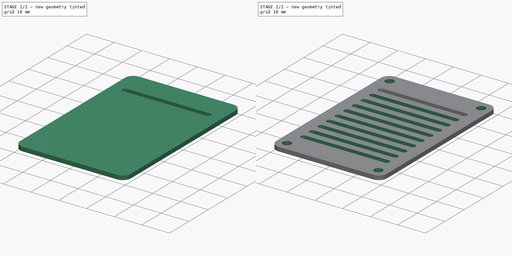
[diagram: build sequence overview — one tinted view per stage of 2, left to right]
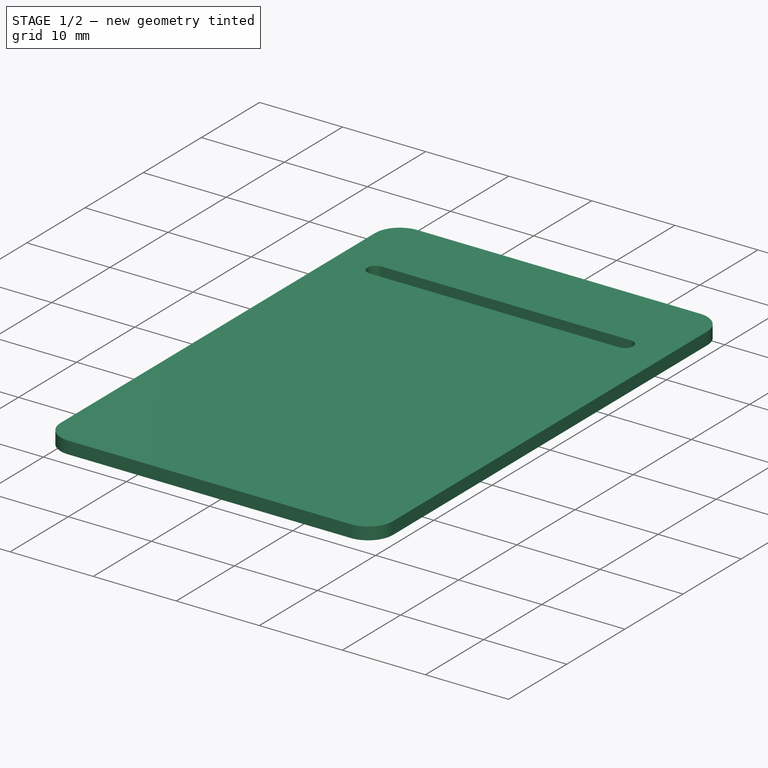
[diagram: stage 1 of 2 — iso view after this stage's code; geometry added in this stage tinted green]
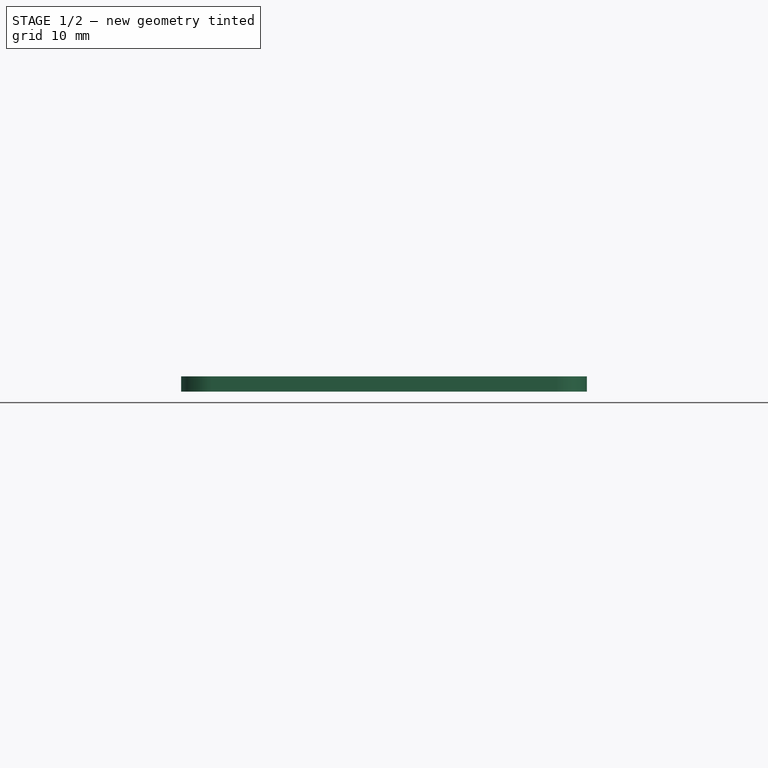
[diagram: stage 1 of 2 — front view after this stage's code; geometry added in this stage tinted green]
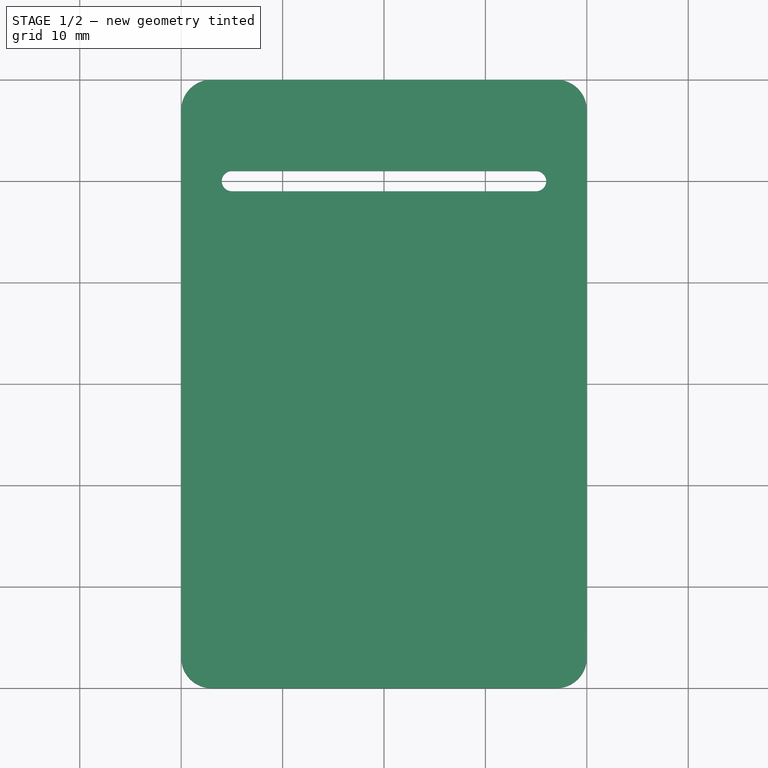
[diagram: stage 1 of 2 — top view after this stage's code; geometry added in this stage tinted green]
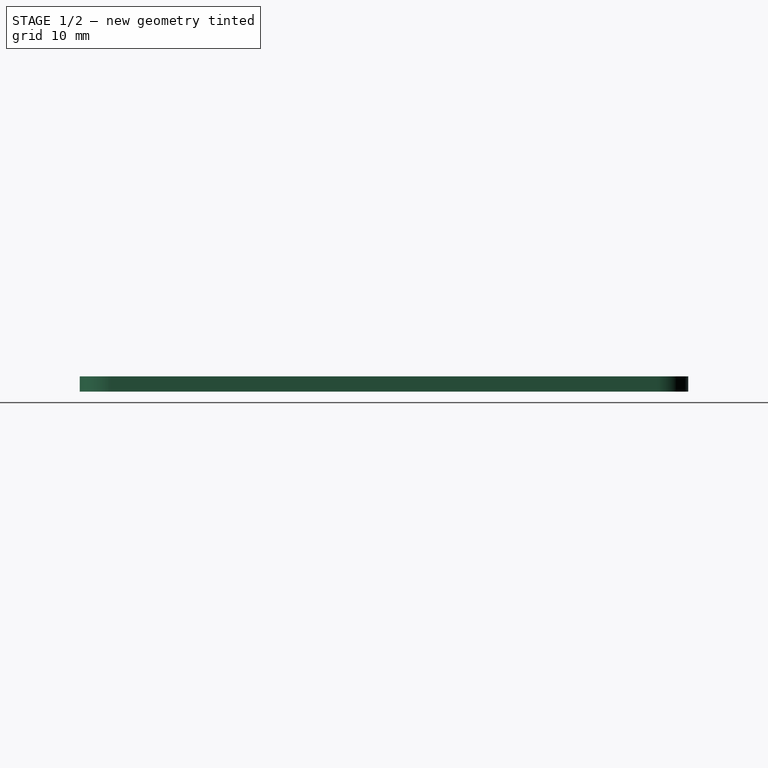
[diagram: stage 1 of 2 — right view after this stage's code; geometry added in this stage tinted green]
FCSTD DOCUMENT  (FreeCAD 0.20R29177 (Git))
Label: ESP01-lid-v1
License: All rights reserved
LicenseURL: http://en.wikipedia.org/wiki/All_rights_reserved
objects: Sketcher::SketchObject×3, PartDesign::Pocket×2, PartDesign::Pad×1, PartDesign::LinearPattern×1, PartDesign::Body×1
note: 11 computed .brp shape members not serialized (recipe doc carries the construction recipe); baked Part::Feature solids carry a one-line shape summary decoded from their .brp

FEATURE [Sketcher::SketchObject] Sketch
  FullyConstrained = true
  MapMode = 5
  Support = -> [XY_Plane]
  sketch-geometry (8):
    g0: LineSegment StartX=-17 StartY=30 StartZ=0 EndX=17 EndY=30 EndZ=0
    g1: LineSegment StartX=20 StartY=27 StartZ=0 EndX=20 EndY=-27 EndZ=0
    g2: LineSegment StartX=17 StartY=-30 StartZ=0 EndX=-17 EndY=-30 EndZ=0
    g3: LineSegment StartX=-20 StartY=-27 StartZ=0 EndX=-20 EndY=27 EndZ=0
    g4: ArcOfCircle CenterX=-17 CenterY=27 CenterZ=0 NormalX=0 NormalY=0 NormalZ=1 AngleXU=0 Radius=3 StartAngle=1.5708 EndAngle=3.14159
    g5: ArcOfCircle CenterX=-17 CenterY=-27 CenterZ=0 NormalX=0 NormalY=0 NormalZ=1 AngleXU=0 Radius=3 StartAngle=3.14159 EndAngle=4.71239
    g6: ArcOfCircle CenterX=17 CenterY=-27 CenterZ=0 NormalX=0 NormalY=0 NormalZ=1 AngleXU=0 Radius=3 StartAngle=4.71239 EndAngle=6.28319
    g7: ArcOfCircle CenterX=17 CenterY=27 CenterZ=0 NormalX=0 NormalY=0 NormalZ=1 AngleXU=0 Radius=3 StartAngle=7.1e-15 EndAngle=1.5708
  constraints (19):
    c: Horizontal(g0)
    c: Horizontal(g2)
    c: Vertical(g1)
    c: Vertical(g3)
    c: Tangent(g3,g4) = 1.5708
    c: Tangent(g0,g4) = 1.5708
    c: Tangent(g3,g5) = 1.5708
    c: Tangent(g2,g5) = 1.5708
    c: Tangent(g2,g6) = 1.5708
    c: Tangent(g1,g6) = 1.5708
    c: Tangent(g0,g7) = 1.5708
    c: Tangent(g1,g7) = 1.5708
    c: Equal(g7,g6)
    c: Equal(g6,g5)
    c: Equal(g5,g4)
    c: Radius(g4) = 3
    c: Symmetric(g4,g6,g-1)
    c: DistanceX(g3,g1) = 40
    c: DistanceY(g2,g0) = 60
FEATURE [PartDesign::Pad] Pad
  Direction = (0,0,1)
  Length = 1.5
  Length2 = 10
  Profile = -> Sketch
  ReferenceAxis = -> Sketch [N_Axis]
  Type = 0
FEATURE [Sketcher::SketchObject] Sketch001
  FullyConstrained = true
  MapMode = 5
  Placement = pos=(0,0,1.5) rot=(0,0,1;0rad)
  Support = -> [Pad]
  sketch-geometry (4):
    g0: ArcOfCircle CenterX=-15 CenterY=20 CenterZ=0 NormalX=0 NormalY=0 NormalZ=1 AngleXU=0 Radius=1 StartAngle=1.5708 EndAngle=4.71239
    g1: ArcOfCircle CenterX=15 CenterY=20 CenterZ=0 NormalX=0 NormalY=0 NormalZ=1 AngleXU=0 Radius=1 StartAngle=4.71239 EndAngle=7.85398
    g2: LineSegment StartX=-15 StartY=19 StartZ=0 EndX=15 EndY=19 EndZ=0
    g3: LineSegment StartX=15 StartY=21 StartZ=0 EndX=-15 EndY=21 EndZ=0
  constraints (9):
    c: Tangent(g0,g2) = -1.5708
    c: Tangent(g2,g1) = -1.5708
    c: Tangent(g1,g3) = -1.5708
    c: Tangent(g3,g0) = -1.5708
    c: Equal(g0,g1)
    c: Symmetric(g1,g0,g-2)
    c: DistanceY(g1,g1) = 2
    c: DistanceY(g-1,g0) = 20
    c: DistanceX(g2,g2) = 30
FEATURE [PartDesign::Pocket] Pocket
  BaseFeature = -> Pad
  Direction = (0,0,-1)
  Length = 5
  Length2 = 5
  Profile = -> Sketch001
  ReferenceAxis = -> Sketch001 [N_Axis]
  Type = 0
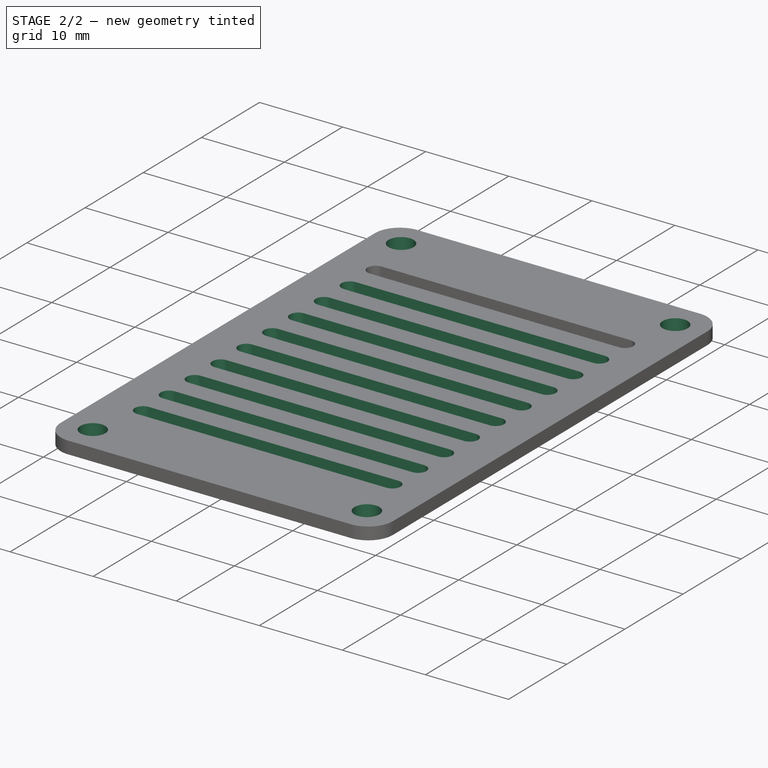
[diagram: stage 2 of 2 — iso view after this stage's code; geometry added in this stage tinted green]
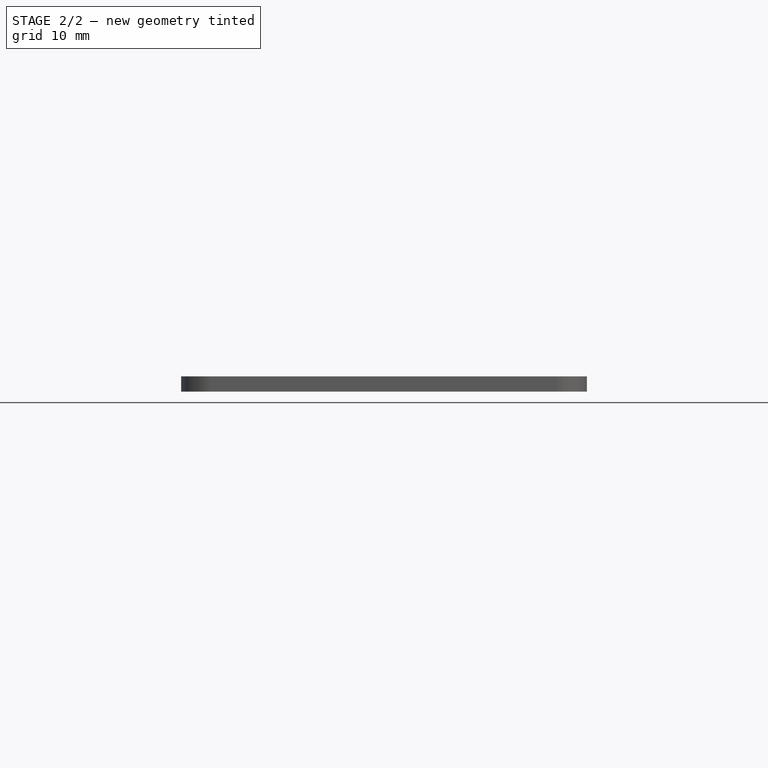
[diagram: stage 2 of 2 — front view after this stage's code; geometry added in this stage tinted green]
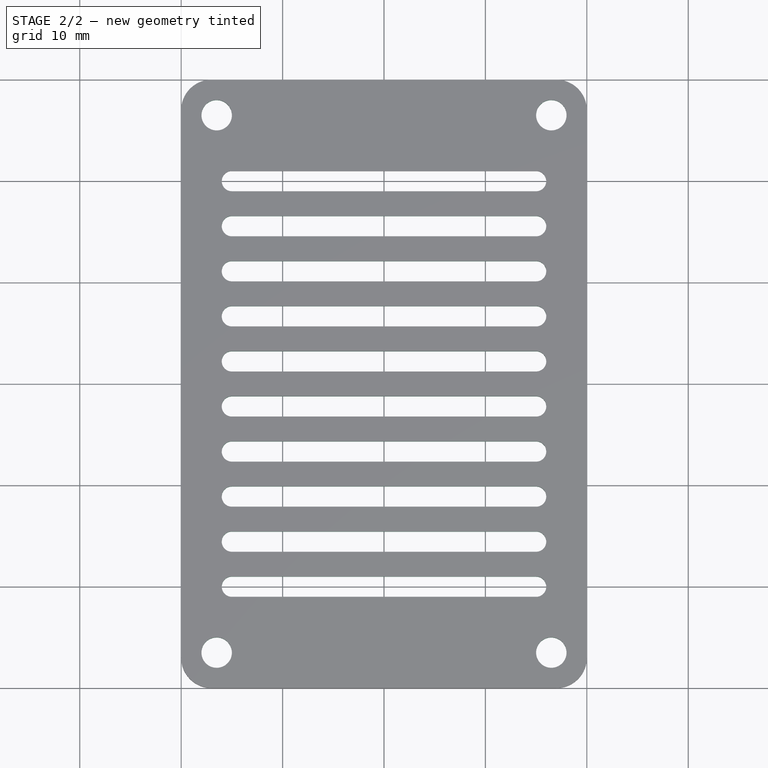
[diagram: stage 2 of 2 — top view after this stage's code; geometry added in this stage tinted green]
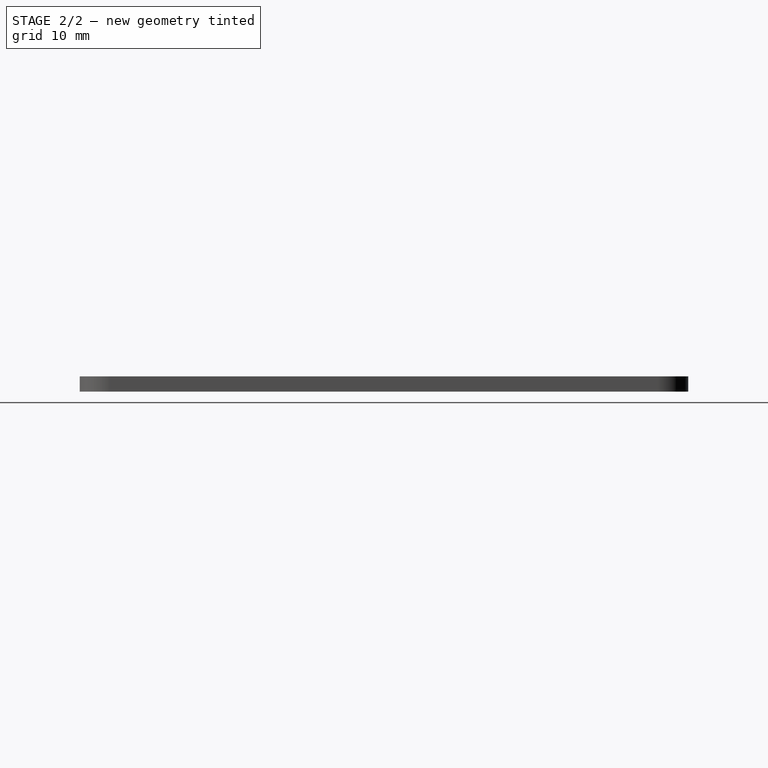
[diagram: stage 2 of 2 — right view after this stage's code; geometry added in this stage tinted green]
FEATURE [PartDesign::LinearPattern] LinearPattern
  BaseFeature = -> Pocket
  Direction = -> Sketch001 [V_Axis]
  Length = 40
  Occurrences = 10
  Originals = -> [Pocket]
  Reversed = true
FEATURE [Sketcher::SketchObject] Sketch002
  FullyConstrained = true
  MapMode = 5
  Placement = pos=(0,0,1.5) rot=(0,0,1;0rad)
  Support = -> [LinearPattern]
  sketch-geometry (28):
    g0: LineSegment StartX=-17 StartY=30 StartZ=0 EndX=-13 EndY=30 EndZ=0
    g1: LineSegment StartX=-13 StartY=30 StartZ=0 EndX=-13 EndY=26 EndZ=0
    g2: LineSegment StartX=-16 StartY=23 StartZ=0 EndX=-20 EndY=23 EndZ=0
    g3: LineSegment StartX=-20 StartY=23 StartZ=0 EndX=-20 EndY=27 EndZ=0
    g4: LineSegment StartX=17 StartY=30 StartZ=0 EndX=13 EndY=30 EndZ=0
    g5: LineSegment StartX=13 StartY=30 StartZ=0 EndX=13 EndY=26 EndZ=0
    g6: LineSegment StartX=16 StartY=23 StartZ=0 EndX=20 EndY=23 EndZ=0
    g7: LineSegment StartX=20 StartY=23 StartZ=0 EndX=20 EndY=27 EndZ=0
    g8: LineSegment StartX=-16 StartY=-23 StartZ=0 EndX=-20 EndY=-23 EndZ=0
    g9: LineSegment StartX=-20 StartY=-23 StartZ=0 EndX=-20 EndY=-27 EndZ=0
    g10: LineSegment StartX=-17 StartY=-30 StartZ=0 EndX=-13 EndY=-30 EndZ=0
    g11: LineSegment StartX=-13 StartY=-30 StartZ=0 EndX=-13 EndY=-26 EndZ=0
    g12: LineSegment StartX=16 StartY=-23 StartZ=0 EndX=20 EndY=-23 EndZ=0
    g13: LineSegment StartX=20 StartY=-23 StartZ=0 EndX=20 EndY=-27 EndZ=0
    g14: LineSegment StartX=17 StartY=-30 StartZ=0 EndX=13 EndY=-30 EndZ=0
    g15: LineSegment StartX=13 StartY=-30 StartZ=0 EndX=13 EndY=-26 EndZ=0
    g16: ArcOfCircle CenterX=-16 CenterY=26 CenterZ=0 NormalX=0 NormalY=0 NormalZ=1 AngleXU=0 Radius=3 StartAngle=4.71239 EndAngle=6.28319
    g17: ArcOfCircle CenterX=16 CenterY=26 CenterZ=0 NormalX=0 NormalY=0 NormalZ=1 AngleXU=0 Radius=3 StartAngle=3.14159 EndAngle=4.71239
    g18: ArcOfCircle CenterX=17 CenterY=27 CenterZ=0 NormalX=0 NormalY=0 NormalZ=1 AngleXU=0 Radius=3 StartAngle=-9e-16 EndAngle=1.5708
    g19: ArcOfCircle CenterX=-17 CenterY=27 CenterZ=0 NormalX=0 NormalY=0 NormalZ=1 AngleXU=0 Radius=3 StartAngle=1.5708 EndAngle=3.14159
    g20: ArcOfCircle CenterX=-17 CenterY=-27 CenterZ=0 NormalX=0 NormalY=0 NormalZ=1 AngleXU=0 Radius=3 StartAngle=3.14159 EndAngle=4.71239
    g21: ArcOfCircle CenterX=-16 CenterY=-26 CenterZ=0 NormalX=0 NormalY=0 NormalZ=1 AngleXU=0 Radius=3 StartAngle=1e-16 EndAngle=1.5708
    g22: ArcOfCircle CenterX=16 CenterY=-26 CenterZ=0 NormalX=0 NormalY=0 NormalZ=1 AngleXU=0 Radius=3 StartAngle=1.5708 EndAngle=3.14159
    g23: ArcOfCircle CenterX=17 CenterY=-27 CenterZ=0 NormalX=0 NormalY=0 NormalZ=1 AngleXU=0 Radius=3 StartAngle=4.71239 EndAngle=6.28319
    g24: Circle CenterX=-16.5 CenterY=26.5 CenterZ=0 NormalX=0 NormalY=0 NormalZ=1 AngleXU=0 Radius=1.5
    g25: Circle CenterX=16.5 CenterY=26.5 CenterZ=0 NormalX=0 NormalY=0 NormalZ=1 AngleXU=0 Radius=1.5
    g26: Circle CenterX=16.5 CenterY=-26.5 CenterZ=0 NormalX=0 NormalY=0 NormalZ=1 AngleXU=0 Radius=1.5
    g27: Circle CenterX=-16.5 CenterY=-26.5 CenterZ=0 NormalX=0 NormalY=0 NormalZ=1 AngleXU=0 Radius=1.5
  constraints (69):
    c: Coincident(g0,g1)
    c: Coincident(g2,g3)
    c: Horizontal(g0)
    c: Horizontal(g2)
    c: Vertical(g1)
    c: Vertical(g3)
    c: Coincident(g4,g5)
    c: Coincident(g6,g7)
    c: Horizontal(g4)
    c: Horizontal(g6)
    c: Vertical(g5)
    c: Vertical(g7)
    c: Coincident(g8,g9)
    c: Coincident(g10,g11)
    c: Horizontal(g8)
    c: Horizontal(g10)
    c: Vertical(g9)
    c: Vertical(g11)
    c: Coincident(g12,g13)
    c: Coincident(g14,g15)
    c: Horizontal(g12)
    c: Horizontal(g14)
    c: Vertical(g13)
    c: Vertical(g15)
    c: Tangent(g1,g16) = 1.5708
    c: Tangent(g2,g16) = 1.5708
    c: Tangent(g5,g17) = -1.5708
    c: Tangent(g6,g17) = -1.5708
    c: Tangent(g4,g18) = -1.5708
    c: Tangent(g7,g18) = -1.5708
    c: Tangent(g3,g19) = 1.5708
    c: Tangent(g0,g19) = 1.5708
    c: Tangent(g9,g20) = -1.5708
    c: Tangent(g10,g20) = -1.5708
    c: Tangent(g8,g21) = -1.5708
    c: Tangent(g11,g21) = -1.5708
    c: Tangent(g15,g22) = 1.5708
    c: Tangent(g12,g22) = 1.5708
    c: Tangent(g13,g23) = 1.5708
    c: Tangent(g14,g23) = 1.5708
    c: Equal(g16,g19)
    c: Equal(g19,g17)
    c: Equal(g17,g18)
    c: Equal(g18,g23)
    c: Equal(g23,g22)
    c: Equal(g22,g21)
    c: Equal(g21,g20)
    c: Equal(g14,g15)
    c: Equal(g11,g10)
    c: Equal(g6,g7)
    c: Equal(g1,g0)
    c: Equal(g12,g8)
    c: Equal(g8,g6)
    c: Equal(g6,g2)
    c: Radius(g20) = 3
    c: DistanceY(g11,g11) = 4
    c: Symmetric(g4,g0,g-2)
    c: Symmetric(g12,g6,g-1)
    c: Symmetric(g10,g14,g-2)
    c: DistanceY(g14,g4) = 60
    c: DistanceX(g8,g12) = 40
    c: Equal(g27,g26)
    c: Equal(g26,g25)
    c: Equal(g25,g24)
    c: Diameter(g24) = 3
    c: Symmetric(g24,g25,g-2)
    c: Symmetric(g27,g26,g-2)
    c: Symmetric(g26,g25,g-1)
    c: Symmetric(g2,g0,g24)
FEATURE [PartDesign::Pocket] Pocket001
  BaseFeature = -> LinearPattern
  Direction = (0,0,-1)
  Length = 5
  Length2 = 5
  Profile = -> Sketch002
  ReferenceAxis = -> Sketch002 [N_Axis]
  Type = 0
FEATURE [PartDesign::Body] Body
  Group = -> [Sketch,Pad,Sketch001,Pocket,LinearPattern,Sketch002,Pocket001]
  Origin = -> Origin
  Tip = -> Pocket001
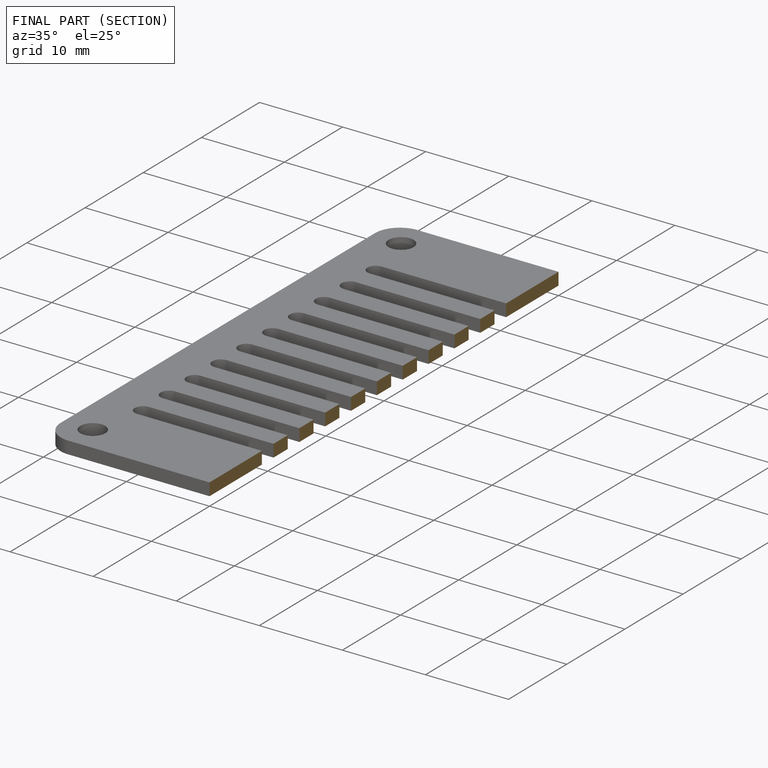
[diagram: finished part — half-section view (interior)]
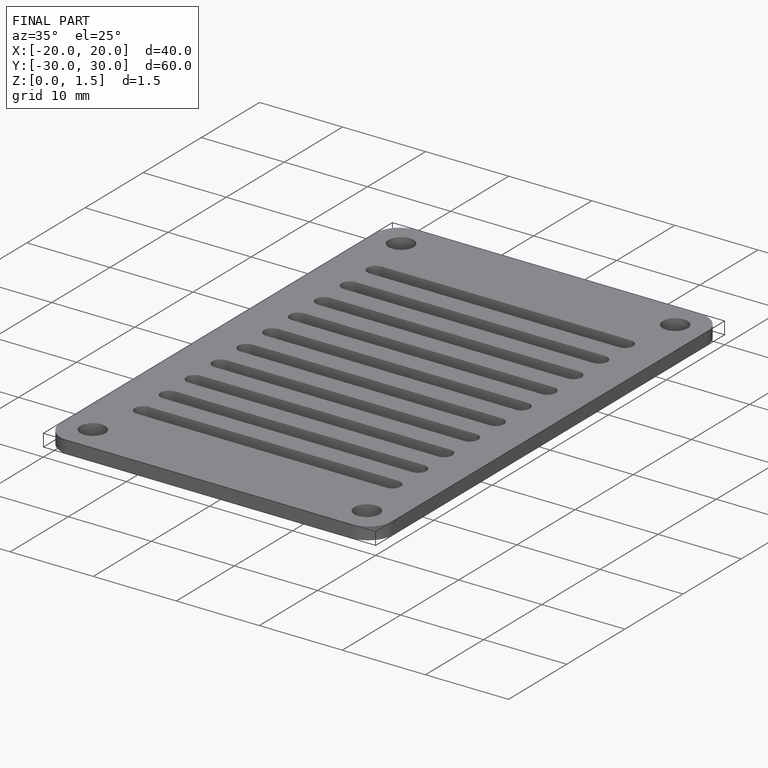
[diagram: finished part — iso view with bounding-box wireframe]
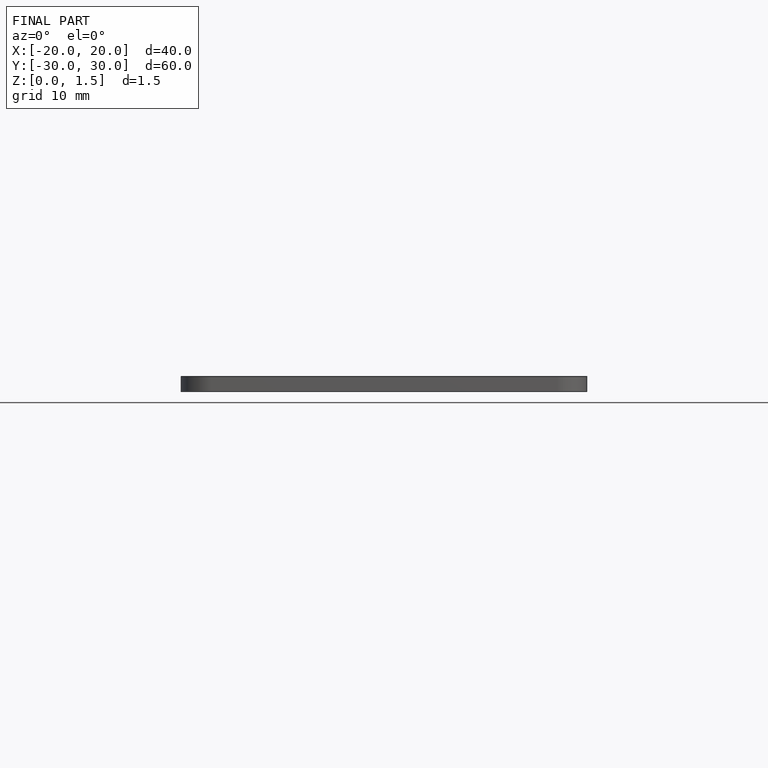
[diagram: finished part — front view with bounding-box wireframe]
